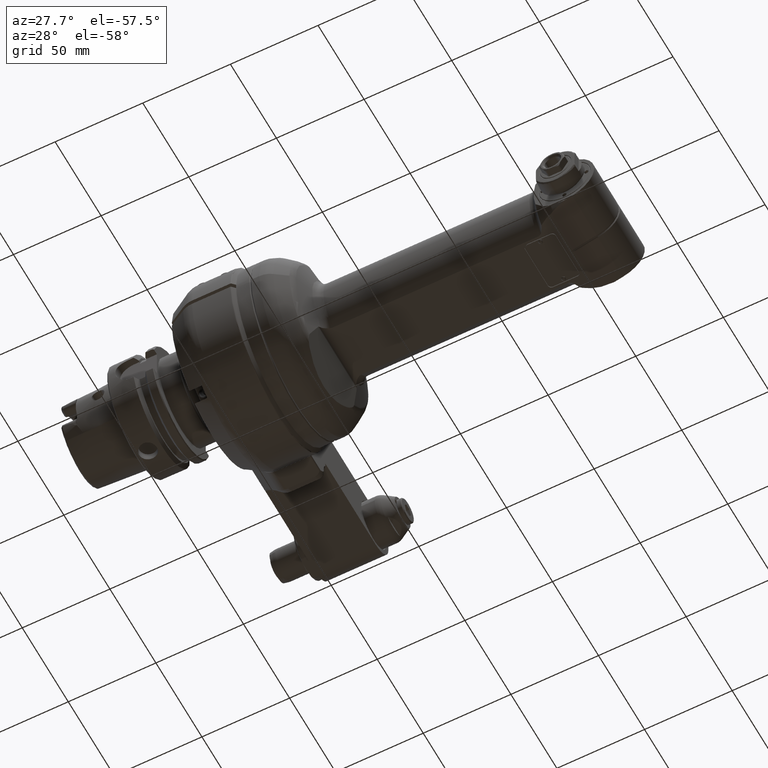
[diagram: clean part render]
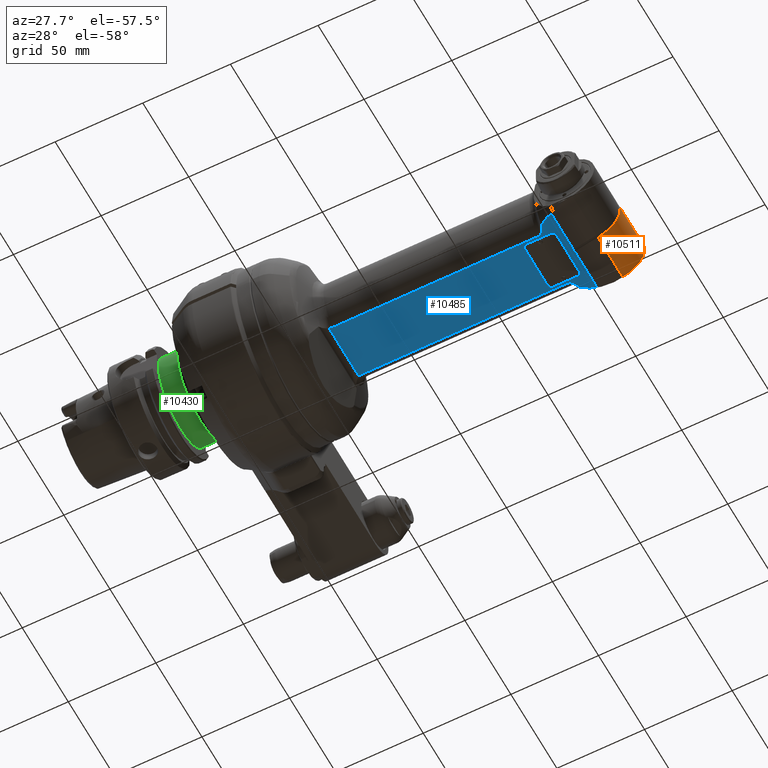
[diagram: same view with three faces highlighted in distinct colors, each labeled with its STEP entity id]
A machine part, auxiliary view with three faces highlighted in distinct colors.
Their STEP definitions:

[orange] entity #10511 — the highlighted cylindrical surface (edge-blend (fillet) strip) has radius 17 mm, axis along (0, 1, 0).
#648=LINE('',#18344,#1344);
#649=LINE('',#18345,#1345);
#1344=VECTOR('',#13302,26.83431457505);
#1345=VECTOR('',#13303,26.83431457505);
#1872=CYLINDRICAL_SURFACE('',#11394,17.);
#2315=FACE_OUTER_BOUND('',#2979,.T.);
#2979=EDGE_LOOP('',(#7805,#7806,#7807,#7808));
#3703=CIRCLE('',#11351,17.);
#3722=CIRCLE('',#11393,17.);
#4507=VERTEX_POINT('',#18157);
#4508=VERTEX_POINT('',#18159);
#4546=VERTEX_POINT('',#18338);
#4547=VERTEX_POINT('',#18339);
#5701=EDGE_CURVE('',#4507,#4508,#3703,.T.);
#5762=EDGE_CURVE('',#4546,#4547,#3722,.T.);
#5765=EDGE_CURVE('',#4546,#4508,#648,.T.);
#5766=EDGE_CURVE('',#4507,#4547,#649,.T.);
#7805=ORIENTED_EDGE('',*,*,#5765,.T.);
#7806=ORIENTED_EDGE('',*,*,#5701,.F.);
#7807=ORIENTED_EDGE('',*,*,#5766,.T.);
#7808=ORIENTED_EDGE('',*,*,#5762,.F.);
#10511=ADVANCED_FACE('',(#2315),#1872,.T.);
#11351=AXIS2_PLACEMENT_3D('',#18160,#13195,#13196);
#11393=AXIS2_PLACEMENT_3D('',#18340,#13296,#13297);
#11394=AXIS2_PLACEMENT_3D('',#18343,#13300,#13301);
#13195=DIRECTION('center_axis',(0.,1.,0.));
#13196=DIRECTION('ref_axis',(0.258819045102493,0.,0.965925826289076));
#13296=DIRECTION('center_axis',(0.,-1.,0.));
#13297=DIRECTION('ref_axis',(0.258819045102493,0.,-0.965925826289076));
#13300=DIRECTION('center_axis',(0.,1.,0.));
#13301=DIRECTION('ref_axis',(1.,0.,-1.22464679914735E-16));
#13302=DIRECTION('',(0.,1.,0.));
#13303=DIRECTION('',(0.,-1.,0.));
#18157=CARTESIAN_POINT('',(4.399923766743,27.5,16.42073904691));
#18159=CARTESIAN_POINT('',(4.399923766743,27.5,-16.42073904691));
#18160=CARTESIAN_POINT('Origin',(0.,27.5,0.));
#18338=CARTESIAN_POINT('',(4.399923766743,0.6656854249492,-16.42073904691));
#18339=CARTESIAN_POINT('',(4.399923766743,0.6656854249493,16.42073904691));
#18340=CARTESIAN_POINT('Origin',(0.,0.6656854249492,0.));
#18343=CARTESIAN_POINT('Origin',(0.,-66.95199937934,0.));
#18344=CARTESIAN_POINT('',(4.399923766743,0.6656854249493,-16.42073904691));
#18345=CARTESIAN_POINT('',(4.399923766743,27.5,16.42073904691));

[blue] entity #10485 — the highlighted planar face has unit normal (0, 0, 1).
#86=(
BOUNDED_CURVE()
B_SPLINE_CURVE(2,(#17986,#17987,#17988),.UNSPECIFIED.,.F.,.F.)
B_SPLINE_CURVE_WITH_KNOTS((3,3),(1.06457238205826,1.31559591795895),
 .UNSPECIFIED.)
CURVE()
GEOMETRIC_REPRESENTATION_ITEM()
RATIONAL_B_SPLINE_CURVE((1.25039827032369,1.27526090229232,1.29792636601555))
REPRESENTATION_ITEM('')
);
#87=(
BOUNDED_CURVE()
B_SPLINE_CURVE(2,(#18014,#18015,#18016),.UNSPECIFIED.,.F.,.F.)
B_SPLINE_CURVE_WITH_KNOTS((3,3),(-0.516400337503422,-0.239175027783158),
 .UNSPECIFIED.)
CURVE()
GEOMETRIC_REPRESENTATION_ITEM()
RATIONAL_B_SPLINE_CURVE((1.08175807390511,1.06139863950775,1.03933618902323))
REPRESENTATION_ITEM('')
);
#88=(
BOUNDED_CURVE()
B_SPLINE_CURVE(2,(#18018,#18019,#18020),.UNSPECIFIED.,.F.,.F.)
B_SPLINE_CURVE_WITH_KNOTS((3,3),(-0.251095684560347,-0.096604785958552),
 .UNSPECIFIED.)
CURVE()
GEOMETRIC_REPRESENTATION_ITEM()
RATIONAL_B_SPLINE_CURVE((1.0287833369398,1.02014305744294,1.01123890250886))
REPRESENTATION_ITEM('')
);
#89=(
BOUNDED_CURVE()
B_SPLINE_CURVE(2,(#18024,#18025,#18026),.UNSPECIFIED.,.F.,.F.)
B_SPLINE_CURVE_WITH_KNOTS((3,3),(-5.84507770998686,-5.60410979833542),
 .UNSPECIFIED.)
CURVE()
GEOMETRIC_REPRESENTATION_ITEM()
RATIONAL_B_SPLINE_CURVE((2.09915162755639,2.11669375284493,2.13092142245755))
REPRESENTATION_ITEM('')
);
#90=(
BOUNDED_CURVE()
B_SPLINE_CURVE(2,(#18048,#18049,#18050),.UNSPECIFIED.,.F.,.F.)
B_SPLINE_CURVE_WITH_KNOTS((3,3),(-3.53534677404522,-3.294378857933),
 .UNSPECIFIED.)
CURVE()
GEOMETRIC_REPRESENTATION_ITEM()
RATIONAL_B_SPLINE_CURVE((2.13092145694192,2.11669378709994,2.09915166152882))
REPRESENTATION_ITEM('')
);
#91=(
BOUNDED_CURVE()
B_SPLINE_CURVE(2,(#18054,#18055,#18056),.UNSPECIFIED.,.F.,.F.)
B_SPLINE_CURVE_WITH_KNOTS((3,3),(-10.5228210850005,-10.3683301622936),
 .UNSPECIFIED.)
CURVE()
GEOMETRIC_REPRESENTATION_ITEM()
RATIONAL_B_SPLINE_CURVE((1.01123897320314,1.0201431287597,1.02878340886059))
REPRESENTATION_ITEM('')
);
#92=(
BOUNDED_CURVE()
B_SPLINE_CURVE(2,(#18057,#18058,#18059),.UNSPECIFIED.,.F.,.F.)
B_SPLINE_CURVE_WITH_KNOTS((3,3),(-7.42204388393209,-7.14481854557658),
 .UNSPECIFIED.)
CURVE()
GEOMETRIC_REPRESENTATION_ITEM()
RATIONAL_B_SPLINE_CURVE((1.03933624816376,1.06139869990367,1.08175813545953))
REPRESENTATION_ITEM('')
);
#93=(
BOUNDED_CURVE()
B_SPLINE_CURVE(2,(#18088,#18089,#18090),.UNSPECIFIED.,.F.,.F.)
B_SPLINE_CURVE_WITH_KNOTS((3,3),(-1.31559669706252,-1.06457311813895),
 .UNSPECIFIED.)
CURVE()
GEOMETRIC_REPRESENTATION_ITEM()
RATIONAL_B_SPLINE_CURVE((1.29792656170244,1.27526109456194,1.25039845884478))
REPRESENTATION_ITEM('')
);
#191=B_SPLINE_CURVE_WITH_KNOTS('',3,(#17875,#17876,#17877,#17878,#17879,
#17880,#17881,#17882),.UNSPECIFIED.,.F.,.F.,(4,2,2,4),(1.57788618575241,
1.58550035989947,1.66636383206748,1.7472273042355),.UNSPECIFIED.);
#195=B_SPLINE_CURVE_WITH_KNOTS('',3,(#17969,#17970,#17971,#17972,#17973,
#17974,#17975,#17976,#17977,#17978,#17979,#17980,#17981,#17982),
 .UNSPECIFIED.,.F.,.F.,(4,2,2,2,2,2,4),(1.41793325150411,1.48239187870566,
1.54685050590721,1.63031823896692,1.71378597202663,1.81826425974735,1.83498601297746),
 .UNSPECIFIED.);
#197=B_SPLINE_CURVE_WITH_KNOTS('',3,(#18028,#18029,#18030,#18031,#18032,
#18033,#18034,#18035,#18036,#18037,#18038,#18039,#18040,#18041,#18042,#18043,
#18044,#18045,#18046),.UNSPECIFIED.,.F.,.F.,(4,2,2,2,3,2,2,2,4),(0.471311837277372,
0.483317272137696,0.501097837827067,0.506833427337294,0.511781501848717,
0.516729576360139,0.522465165870366,0.540245731559736,0.552251166426414),
 .UNSPECIFIED.);
#198=B_SPLINE_CURVE_WITH_KNOTS('',3,(#18063,#18064,#18065,#18066,#18067,
#18068,#18069,#18070),.UNSPECIFIED.,.F.,.F.,(4,2,2,4),(1.57788618575291,
1.58550035989947,1.66636383206748,1.7472273042355),.UNSPECIFIED.);
#199=B_SPLINE_CURVE_WITH_KNOTS('',3,(#18074,#18075,#18076,#18077,#18078,
#18079,#18080,#18081,#18082,#18083,#18084,#18085,#18086,#18087),
 .UNSPECIFIED.,.F.,.F.,(4,2,2,2,2,2,4),(-1.83498601297718,-1.81826425974735,
-1.71378597202663,-1.63031823896692,-1.54685050590721,-1.48239187870566,
-1.41793325150411),.UNSPECIFIED.);
#619=LINE('',#17965,#1315);
#620=LINE('',#18022,#1316);
#621=LINE('',#18052,#1317);
#622=LINE('',#18061,#1318);
#623=LINE('',#18072,#1319);
#624=LINE('',#18093,#1320);
#625=LINE('',#18097,#1321);
#626=LINE('',#18101,#1322);
#627=LINE('',#18105,#1323);
#1315=VECTOR('',#13137,117.4166943204);
#1316=VECTOR('',#13152,10.);
#1317=VECTOR('',#13153,10.);
#1318=VECTOR('',#13154,32.59043472594);
#1319=VECTOR('',#13155,117.4166943204);
#1320=VECTOR('',#13156,14.);
#1321=VECTOR('',#13159,25.);
#1322=VECTOR('',#13162,14.);
#1323=VECTOR('',#13165,25.);
#2080=FACE_BOUND('',#2951,.T.);
#2289=FACE_OUTER_BOUND('',#2950,.T.);
#2950=EDGE_LOOP('',(#7646,#7647,#7648,#7649,#7650,#7651,#7652,#7653,#7654,
#7655,#7656,#7657,#7658,#7659,#7660,#7661,#7662,#7663));
#2951=EDGE_LOOP('',(#7664,#7665,#7666,#7667,#7668,#7669,#7670,#7671));
#3693=CIRCLE('',#11334,2.);
#3694=CIRCLE('',#11335,2.);
#3695=CIRCLE('',#11336,2.);
#3696=CIRCLE('',#11337,2.);
#4456=VERTEX_POINT('',#17865);
#4457=VERTEX_POINT('',#17874);
#4476=VERTEX_POINT('',#17964);
#4477=VERTEX_POINT('',#17968);
#4478=VERTEX_POINT('',#17985);
#4481=VERTEX_POINT('',#18012);
#4482=VERTEX_POINT('',#18013);
#4483=VERTEX_POINT('',#18017);
#4484=VERTEX_POINT('',#18021);
#4485=VERTEX_POINT('',#18023);
#4486=VERTEX_POINT('',#18027);
#4487=VERTEX_POINT('',#18047);
#4488=VERTEX_POINT('',#18051);
#4489=VERTEX_POINT('',#18053);
#4490=VERTEX_POINT('',#18060);
#4491=VERTEX_POINT('',#18062);
#4492=VERTEX_POINT('',#18071);
#4493=VERTEX_POINT('',#18073);
#4494=VERTEX_POINT('',#18091);
#4495=VERTEX_POINT('',#18092);
#4496=VERTEX_POINT('',#18094);
#4497=VERTEX_POINT('',#18096);
#4498=VERTEX_POINT('',#18098);
#4499=VERTEX_POINT('',#18100);
#4500=VERTEX_POINT('',#18102);
#4501=VERTEX_POINT('',#18104);
#5639=EDGE_CURVE('',#4456,#4457,#191,.T.);
#5660=EDGE_CURVE('',#4457,#4476,#619,.T.);
#5662=EDGE_CURVE('',#4476,#4477,#195,.T.);
#5664=EDGE_CURVE('',#4478,#4477,#86,.T.);
#5668=EDGE_CURVE('',#4481,#4482,#87,.T.);
#5669=EDGE_CURVE('',#4482,#4483,#88,.T.);
#5670=EDGE_CURVE('',#4483,#4484,#620,.T.);
#5671=EDGE_CURVE('',#4485,#4484,#89,.T.);
#5672=EDGE_CURVE('',#4486,#4485,#197,.F.);
#5673=EDGE_CURVE('',#4487,#4486,#90,.T.);
#5674=EDGE_CURVE('',#4487,#4488,#621,.T.);
#5675=EDGE_CURVE('',#4488,#4489,#91,.T.);
#5676=EDGE_CURVE('',#4489,#4478,#92,.T.);
#5677=EDGE_CURVE('',#4490,#4456,#622,.T.);
#5678=EDGE_CURVE('',#4490,#4491,#198,.T.);
#5679=EDGE_CURVE('',#4492,#4491,#623,.T.);
#5680=EDGE_CURVE('',#4493,#4492,#199,.T.);
#5681=EDGE_CURVE('',#4493,#4481,#93,.T.);
#5682=EDGE_CURVE('',#4494,#4495,#624,.T.);
#5683=EDGE_CURVE('',#4495,#4496,#3693,.T.);
#5684=EDGE_CURVE('',#4496,#4497,#625,.T.);
#5685=EDGE_CURVE('',#4497,#4498,#3694,.T.);
#5686=EDGE_CURVE('',#4498,#4499,#626,.T.);
#5687=EDGE_CURVE('',#4499,#4500,#3695,.T.);
#5688=EDGE_CURVE('',#4500,#4501,#627,.T.);
#5689=EDGE_CURVE('',#4501,#4494,#3696,.T.);
#7646=ORIENTED_EDGE('',*,*,#5668,.T.);
#7647=ORIENTED_EDGE('',*,*,#5669,.T.);
#7648=ORIENTED_EDGE('',*,*,#5670,.T.);
#7649=ORIENTED_EDGE('',*,*,#5671,.F.);
#7650=ORIENTED_EDGE('',*,*,#5672,.F.);
#7651=ORIENTED_EDGE('',*,*,#5673,.F.);
#7652=ORIENTED_EDGE('',*,*,#5674,.T.);
#7653=ORIENTED_EDGE('',*,*,#5675,.T.);
#7654=ORIENTED_EDGE('',*,*,#5676,.T.);
#7655=ORIENTED_EDGE('',*,*,#5664,.T.);
#7656=ORIENTED_EDGE('',*,*,#5662,.F.);
#7657=ORIENTED_EDGE('',*,*,#5660,.F.);
#7658=ORIENTED_EDGE('',*,*,#5639,.F.);
#7659=ORIENTED_EDGE('',*,*,#5677,.F.);
#7660=ORIENTED_EDGE('',*,*,#5678,.T.);
#7661=ORIENTED_EDGE('',*,*,#5679,.F.);
#7662=ORIENTED_EDGE('',*,*,#5680,.F.);
#7663=ORIENTED_EDGE('',*,*,#5681,.T.);
#7664=ORIENTED_EDGE('',*,*,#5682,.T.);
#7665=ORIENTED_EDGE('',*,*,#5683,.T.);
#7666=ORIENTED_EDGE('',*,*,#5684,.T.);
#7667=ORIENTED_EDGE('',*,*,#5685,.T.);
#7668=ORIENTED_EDGE('',*,*,#5686,.T.);
#7669=ORIENTED_EDGE('',*,*,#5687,.T.);
#7670=ORIENTED_EDGE('',*,*,#5688,.T.);
#7671=ORIENTED_EDGE('',*,*,#5689,.T.);
#10118=PLANE('',#11333);
#10485=ADVANCED_FACE('',(#2289,#2080),#10118,.F.);
#11333=AXIS2_PLACEMENT_3D('',#18011,#13150,#13151);
#11334=AXIS2_PLACEMENT_3D('',#18095,#13157,#13158);
#11335=AXIS2_PLACEMENT_3D('',#18099,#13160,#13161);
#11336=AXIS2_PLACEMENT_3D('',#18103,#13163,#13164);
#11337=AXIS2_PLACEMENT_3D('',#18106,#13166,#13167);
#13137=DIRECTION('',(1.,0.,0.));
#13150=DIRECTION('center_axis',(0.,0.,1.));
#13151=DIRECTION('ref_axis',(1.,0.,0.));
#13152=DIRECTION('',(0.,-1.,0.));
#13153=DIRECTION('',(0.,-1.,0.));
#13154=DIRECTION('',(-4.151136308133E-13,-1.,-1.831383665353E-14));
#13155=DIRECTION('',(-1.,0.,0.));
#13156=DIRECTION('',(-1.,0.,0.));
#13157=DIRECTION('center_axis',(0.,0.,1.));
#13158=DIRECTION('ref_axis',(-3.357314426466E-13,1.,0.));
#13159=DIRECTION('',(0.,-1.,0.));
#13160=DIRECTION('center_axis',(0.,0.,1.));
#13161=DIRECTION('ref_axis',(-1.,0.,0.));
#13162=DIRECTION('',(1.,0.,0.));
#13163=DIRECTION('center_axis',(0.,0.,1.));
#13164=DIRECTION('ref_axis',(0.,-1.,0.));
#13165=DIRECTION('',(0.,1.,0.));
#13166=DIRECTION('center_axis',(0.,0.,1.));
#13167=DIRECTION('ref_axis',(1.,0.,0.));
#17865=CARTESIAN_POINT('',(-140.1991697991,-16.29521736298,-20.));
#17874=CARTESIAN_POINT('',(-138.4989625226,-15.81929201956,-20.));
#17875=CARTESIAN_POINT('Ctrl Pts',(-140.199169799108,-16.2952173629657,
-20.));
#17876=CARTESIAN_POINT('Ctrl Pts',(-140.176881589543,-16.2824584226786,
-20.));
#17877=CARTESIAN_POINT('Ctrl Pts',(-140.154601089432,-16.2699786801873,
-20.));
#17878=CARTESIAN_POINT('Ctrl Pts',(-139.895960195781,-16.1282538360826,
-20.));
#17879=CARTESIAN_POINT('Ctrl Pts',(-139.62422330703,-16.0119361033134,-20.));
#17880=CARTESIAN_POINT('Ctrl Pts',(-139.060584731621,-15.8571351272388,
-20.));
#17881=CARTESIAN_POINT('Ctrl Pts',(-138.768507429827,-15.8192920195564,
-20.));
#17882=CARTESIAN_POINT('Ctrl Pts',(-138.4989625226,-15.8192920195564,-20.));
#17964=CARTESIAN_POINT('',(-21.08226820221,-15.81929201956,-20.));
#17965=CARTESIAN_POINT('',(-138.4989625226,-15.81929201956,-20.));
#17968=CARTESIAN_POINT('',(-17.8056599338565,-18.4431507451935,-19.999999938783));
#17969=CARTESIAN_POINT('Ctrl Pts',(-21.08226820221,-15.8192920195564,-20.));
#17970=CARTESIAN_POINT('Ctrl Pts',(-20.8674061115382,-15.8192920195564,
-20.));
#17971=CARTESIAN_POINT('Ctrl Pts',(-20.6345521314484,-15.8493383555497,
-20.));
#17972=CARTESIAN_POINT('Ctrl Pts',(-20.1851665279438,-15.9724307903183,
-20.));
#17973=CARTESIAN_POINT('Ctrl Pts',(-19.9685018553407,-16.0649906372325,
-20.));
#17974=CARTESIAN_POINT('Ctrl Pts',(-19.5360269599559,-16.3018473660257,
-20.));
#17975=CARTESIAN_POINT('Ctrl Pts',(-19.289831040505,-16.4801758064256,-20.));
#17976=CARTESIAN_POINT('Ctrl Pts',(-18.8420278040449,-16.8881912998672,
-20.));
#17977=CARTESIAN_POINT('Ctrl Pts',(-18.6399184126954,-17.1173269779209,
-20.));
#17978=CARTESIAN_POINT('Ctrl Pts',(-18.2607256866873,-17.6160237864576,
-20.));
#17979=CARTESIAN_POINT('Ctrl Pts',(-18.0584753825365,-17.9397924573067,
-20.));
#17980=CARTESIAN_POINT('Ctrl Pts',(-17.8585871694911,-18.3335130779317,
-20.));
#17981=CARTESIAN_POINT('Ctrl Pts',(-17.8317366127236,-18.3882155377655,
-20.));
#17982=CARTESIAN_POINT('Ctrl Pts',(-17.8056599081399,-18.4431507329863,
-20.));
#17985=CARTESIAN_POINT('',(-16.5492735025073,-21.0000001781951,-19.9999999486291));
#17986=CARTESIAN_POINT('Ctrl Pts',(-16.5492735210911,-21.0000001877102,
-20.));
#17987=CARTESIAN_POINT('Ctrl Pts',(-17.2181884974047,-19.6807631403205,
-20.));
#17988=CARTESIAN_POINT('Ctrl Pts',(-17.8056599081395,-18.4431507329871,
-20.));
#18011=CARTESIAN_POINT('Origin',(-8.958059963721,-27.,-20.));
#18012=CARTESIAN_POINT('',(-16.5492735025076,21.0000001781946,-19.9999999486292));
#18013=CARTESIAN_POINT('',(-12.2602596487027,23.6854386473341,-19.9999999734082));
#18014=CARTESIAN_POINT('Ctrl Pts',(-16.5492734546931,21.0000001040469,-20.));
#18015=CARTESIAN_POINT('Ctrl Pts',(-14.5336439128471,22.2979620652559,-20.));
#18016=CARTESIAN_POINT('Ctrl Pts',(-12.2602596459409,23.6854386435734,-20.));
#18017=CARTESIAN_POINT('',(-8.95805997712545,24.8322745421568,-20.0000000017384));
#18018=CARTESIAN_POINT('Ctrl Pts',(-12.2602596364908,23.685438613317,-20.));
#18019=CARTESIAN_POINT('Ctrl Pts',(-10.6481876285817,24.2507882953361,-20.));
#18020=CARTESIAN_POINT('Ctrl Pts',(-8.95805997906799,24.8322745478043,-20.));
#18021=CARTESIAN_POINT('',(-8.95805996797061,0.637070516380984,-20.0000000005573));
#18022=CARTESIAN_POINT('',(-8.95805996373779,-27.,-20.));
#18023=CARTESIAN_POINT('',(-9.9410782098284,0.282843784841781,-19.9999999890833));
#18024=CARTESIAN_POINT('Ctrl Pts',(-9.94107821547391,0.282843799130938,
-20.));
#18025=CARTESIAN_POINT('Ctrl Pts',(-9.44243696250673,0.479749603983533,
-20.));
#18026=CARTESIAN_POINT('Ctrl Pts',(-8.9580599680677,0.637070516661276,-20.));
#18027=CARTESIAN_POINT('',(-9.94107820976497,-0.282843784869286,-19.999999989083));
#18028=CARTESIAN_POINT('Ctrl Pts',(-9.94107821499761,0.282843799316021,
-20.));
#18029=CARTESIAN_POINT('Ctrl Pts',(-9.98157322668351,0.266853061402526,
-20.));
#18030=CARTESIAN_POINT('Ctrl Pts',(-10.0203797394175,0.248581179758878,
-20.));
#18031=CARTESIAN_POINT('Ctrl Pts',(-10.1063294158116,0.198877098745625,
-20.));
#18032=CARTESIAN_POINT('Ctrl Pts',(-10.162778728223,0.15561220087183,-20.));
#18033=CARTESIAN_POINT('Ctrl Pts',(-10.2063853048867,0.0904737553353401,
-20.));
#18034=CARTESIAN_POINT('Ctrl Pts',(-10.2167281362239,0.0699950436471761,
-20.));
#18035=CARTESIAN_POINT('Ctrl Pts',(-10.2274390660413,0.0360317439534601,
-20.));
#18036=CARTESIAN_POINT('Ctrl Pts',(-10.2306005969796,0.0164935817047761,
-20.));
#18037=CARTESIAN_POINT('Ctrl Pts',(-10.2306005969796,3.5527136788005E-14,
-20.));
#18038=CARTESIAN_POINT('Ctrl Pts',(-10.2306005969796,-0.016493581704705,
-20.));
#18039=CARTESIAN_POINT('Ctrl Pts',(-10.2274390660413,-0.036031743953389,
-20.));
#18040=CARTESIAN_POINT('Ctrl Pts',(-10.2167281362239,-0.0699950436471051,
-20.));
#18041=CARTESIAN_POINT('Ctrl Pts',(-10.2063853048867,-0.0904737553352689,
-20.));
#18042=CARTESIAN_POINT('Ctrl Pts',(-10.162778728223,-0.155612200871758,
-20.));
#18043=CARTESIAN_POINT('Ctrl Pts',(-10.1063294158116,-0.198877098745555,
-20.));
#18044=CARTESIAN_POINT('Ctrl Pts',(-10.0203797393992,-0.248581179769409,
-20.));
#18045=CARTESIAN_POINT('Ctrl Pts',(-9.9815732266424,-0.26685306142174,-20.));
#18046=CARTESIAN_POINT('Ctrl Pts',(-9.9410782149333,-0.282843799341346,
-20.));
#18047=CARTESIAN_POINT('',(-8.95805996797064,-0.637070516386772,-20.0000000005573));
#18048=CARTESIAN_POINT('Ctrl Pts',(-8.95805996806772,-0.637070516667066,
-20.));
#18049=CARTESIAN_POINT('Ctrl Pts',(-9.44243696247653,-0.479749603999137,
-20.));
#18050=CARTESIAN_POINT('Ctrl Pts',(-9.94107821541161,-0.282843799161337,
-20.));
#18051=CARTESIAN_POINT('',(-8.95805997712584,-24.8322745421565,-20.0000000017384));
#18052=CARTESIAN_POINT('',(-8.95805996373779,-27.,-20.));
#18053=CARTESIAN_POINT('',(-12.260259648703,-23.6854386473339,-19.9999999734083));
#18054=CARTESIAN_POINT('Ctrl Pts',(-8.95805997906845,-24.8322745478041,
-20.));
#18055=CARTESIAN_POINT('Ctrl Pts',(-10.6481876285821,-24.250788295336,-20.));
#18056=CARTESIAN_POINT('Ctrl Pts',(-12.2602596364912,-23.6854386133169,
-20.));
#18057=CARTESIAN_POINT('Ctrl Pts',(-12.2602596459413,-23.6854386435731,
-20.));
#18058=CARTESIAN_POINT('Ctrl Pts',(-14.533643912847,-22.297962065256,-20.));
#18059=CARTESIAN_POINT('Ctrl Pts',(-16.5492734546927,-21.0000001040472,
-20.));
#18060=CARTESIAN_POINT('',(-140.1991697991,16.29521736297,-20.));
#18061=CARTESIAN_POINT('',(-140.1991697991,16.29521736297,-20.));
#18062=CARTESIAN_POINT('',(-138.4989625226,15.81929201956,-20.));
#18063=CARTESIAN_POINT('Ctrl Pts',(-140.199169799104,16.2952173629632,-20.));
#18064=CARTESIAN_POINT('Ctrl Pts',(-140.17688158954,16.282458422677,-20.));
#18065=CARTESIAN_POINT('Ctrl Pts',(-140.154601089431,16.2699786801865,-20.));
#18066=CARTESIAN_POINT('Ctrl Pts',(-139.895960195781,16.1282538360826,-20.));
#18067=CARTESIAN_POINT('Ctrl Pts',(-139.62422330703,16.0119361033134,-20.));
#18068=CARTESIAN_POINT('Ctrl Pts',(-139.060584731621,15.8571351272388,-20.));
#18069=CARTESIAN_POINT('Ctrl Pts',(-138.768507429827,15.8192920195564,-20.));
#18070=CARTESIAN_POINT('Ctrl Pts',(-138.4989625226,15.8192920195564,-20.));
#18071=CARTESIAN_POINT('',(-21.08226820221,15.81929201956,-20.));
#18072=CARTESIAN_POINT('',(-21.08226820221,15.81929201956,-20.));
#18073=CARTESIAN_POINT('',(-17.8056599338575,18.4431507451906,-19.9999999387837));
#18074=CARTESIAN_POINT('Ctrl Pts',(-17.8056599081412,18.4431507329836,-20.));
#18075=CARTESIAN_POINT('Ctrl Pts',(-17.8317366127245,18.3882155377636,-20.));
#18076=CARTESIAN_POINT('Ctrl Pts',(-17.8585871694916,18.3335130779308,-20.));
#18077=CARTESIAN_POINT('Ctrl Pts',(-18.0584753825365,17.9397924573067,-20.));
#18078=CARTESIAN_POINT('Ctrl Pts',(-18.2607256866873,17.6160237864576,-20.));
#18079=CARTESIAN_POINT('Ctrl Pts',(-18.6399184126954,17.1173269779209,-20.));
#18080=CARTESIAN_POINT('Ctrl Pts',(-18.8420278040449,16.8881912998672,-20.));
#18081=CARTESIAN_POINT('Ctrl Pts',(-19.289831040505,16.4801758064256,-20.));
#18082=CARTESIAN_POINT('Ctrl Pts',(-19.5360269599559,16.3018473660257,-20.));
#18083=CARTESIAN_POINT('Ctrl Pts',(-19.9685018553407,16.0649906372325,-20.));
#18084=CARTESIAN_POINT('Ctrl Pts',(-20.1851665279438,15.9724307903183,-20.));
#18085=CARTESIAN_POINT('Ctrl Pts',(-20.6345521314484,15.8493383555497,-20.));
#18086=CARTESIAN_POINT('Ctrl Pts',(-20.8674061115382,15.8192920195564,-20.));
#18087=CARTESIAN_POINT('Ctrl Pts',(-21.08226820221,15.8192920195564,-20.));
#18088=CARTESIAN_POINT('Ctrl Pts',(-17.8056599081408,18.4431507329843,-20.));
#18089=CARTESIAN_POINT('Ctrl Pts',(-17.2181884974056,19.6807631403188,-20.));
#18090=CARTESIAN_POINT('Ctrl Pts',(-16.5492735210913,21.0000001877098,-20.));
#18091=CARTESIAN_POINT('',(-14.5,14.5,-20.));
#18092=CARTESIAN_POINT('',(-28.5,14.5,-20.));
#18093=CARTESIAN_POINT('',(-14.5,14.5,-20.));
#18094=CARTESIAN_POINT('',(-30.5,12.5,-20.));
#18095=CARTESIAN_POINT('Origin',(-28.5,12.5,-20.));
#18096=CARTESIAN_POINT('',(-30.5,-12.5,-20.));
#18097=CARTESIAN_POINT('',(-30.5,12.5,-20.));
#18098=CARTESIAN_POINT('',(-28.5,-14.5,-20.));
#18099=CARTESIAN_POINT('Origin',(-28.5,-12.5,-20.));
#18100=CARTESIAN_POINT('',(-14.5,-14.5,-20.));
#18101=CARTESIAN_POINT('',(-28.5,-14.5,-20.));
#18102=CARTESIAN_POINT('',(-12.5,-12.5,-20.));
#18103=CARTESIAN_POINT('Origin',(-14.5,-12.5,-20.));
#18104=CARTESIAN_POINT('',(-12.5,12.5,-20.));
#18105=CARTESIAN_POINT('',(-12.5,-12.5,-20.));
#18106=CARTESIAN_POINT('Origin',(-14.5,12.5,-20.));

[green] entity #10430 — the highlighted cylindrical surface (bore or boss wall) has radius 25 mm, axis along (1, 0, 0).
#550=LINE('',#17329,#1246);
#1246=VECTOR('',#12804,25.);
#1856=CYLINDRICAL_SURFACE('',#11193,25.);
#2234=FACE_OUTER_BOUND('',#2888,.T.);
#2888=EDGE_LOOP('',(#7306,#7307,#7308,#7309,#7310));
#3601=CIRCLE('',#11165,25.);
#3612=CIRCLE('',#11194,25.);
#3613=CIRCLE('',#11195,25.);
#4313=VERTEX_POINT('',#17216);
#4328=VERTEX_POINT('',#17326);
#4329=VERTEX_POINT('',#17327);
#5428=EDGE_CURVE('',#4313,#4313,#3601,.T.);
#5459=EDGE_CURVE('',#4328,#4329,#3612,.T.);
#5460=EDGE_CURVE('',#4328,#4313,#550,.T.);
#5461=EDGE_CURVE('',#4329,#4328,#3613,.T.);
#7306=ORIENTED_EDGE('',*,*,#5459,.F.);
#7307=ORIENTED_EDGE('',*,*,#5460,.T.);
#7308=ORIENTED_EDGE('',*,*,#5428,.F.);
#7309=ORIENTED_EDGE('',*,*,#5460,.F.);
#7310=ORIENTED_EDGE('',*,*,#5461,.F.);
#10430=ADVANCED_FACE('',(#2234),#1856,.T.);
#11165=AXIS2_PLACEMENT_3D('',#17217,#12732,#12733);
#11193=AXIS2_PLACEMENT_3D('',#17325,#12800,#12801);
#11194=AXIS2_PLACEMENT_3D('',#17328,#12802,#12803);
#11195=AXIS2_PLACEMENT_3D('',#17330,#12805,#12806);
#12732=DIRECTION('center_axis',(-1.,0.,0.));
#12733=DIRECTION('ref_axis',(0.,0.,-1.));
#12800=DIRECTION('center_axis',(1.,0.,0.));
#12801=DIRECTION('ref_axis',(0.,0.,-1.));
#12802=DIRECTION('center_axis',(1.,0.,0.));
#12803=DIRECTION('ref_axis',(0.,0.,1.));
#12804=DIRECTION('',(-1.,0.,0.));
#12805=DIRECTION('center_axis',(1.,0.,0.));
#12806=DIRECTION('ref_axis',(0.,0.,1.));
#17216=CARTESIAN_POINT('',(-233.,0.,25.));
#17217=CARTESIAN_POINT('Origin',(-233.,0.,0.));
#17325=CARTESIAN_POINT('Origin',(-226.45,0.,0.));
#17326=CARTESIAN_POINT('',(-222.,0.,25.));
#17327=CARTESIAN_POINT('',(-222.,-3.06161699786838E-15,-25.));
#17328=CARTESIAN_POINT('Origin',(-222.,0.,0.));
#17329=CARTESIAN_POINT('',(-226.45,-3.06161699786838E-15,25.));
#17330=CARTESIAN_POINT('Origin',(-222.,0.,0.));